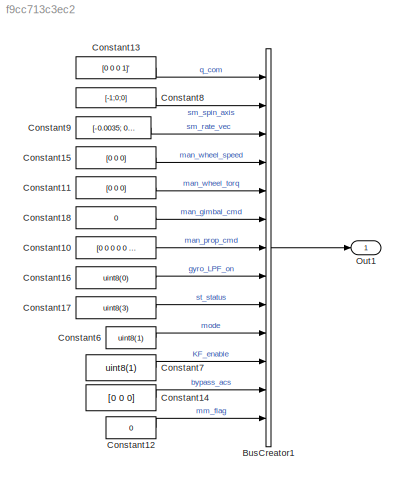
MODEL slx_f9cc713c3ec2
KIND model
CONFIG AbsTol = auto
CONFIG EnableMultiTasking = on
CONFIG FixedStep = 0.200000
CONFIG MaxStep = auto
CONFIG MinStep = auto
CONFIG PreLoadFcn = cellInfo =  {\n  { ...\n    'acs_command_msg', ...\n    '', ...\n    sprintf(''), { ...\n      {'torque_com_wheel', 3, 'double', -1, 'real', 'Sample'}; ...\n      {'thruster_on_times', 6, 'double', -1, 'real', 'Sample'}; ...\n   }\n  }\n};\nSimulink.Bus.cellToObject(cellInfo); \n\n \ncellInfo = {\n    { ...\n         'command_state_msg' , ...\n         '', ...\n         sprintf(''), {  ...\n               {  'q_com...<+1002ch>
CONFIG RelTol = 1e-3
CONFIG SampleTimeConstraint = Unconstrained
CONFIG Solver = FixedStepDiscrete
CONFIG SolverName = FixedStepDiscrete
CONFIG StartTime = 0.0
CONFIG StopTime = 19.8
WORKSPACE source: MAT-file member
WORKSPACE already_pp = 0
BLOCK [BusCreator] BusCreator1
  DisplayOption = bar
  InheritFromInputs = off
  Inputs = 13
  NonVirtualBus = on
  OutDataTypeStr = Bus: command_state_msg
  Ports = [13, 1]
BLOCK [Constant] Constant10
  OutDataTypeStr = uint16
  SampleTime = dt
  Value = [0 0 0 0 0 0 0 0]
BLOCK [Constant] Constant11
  OutDataTypeStr = single
  SampleTime = dt
  Value = [0 0 0]
BLOCK [Constant] Constant12
  OutDataTypeStr = uint8
  SampleTime = dt
  Value = 0
BLOCK [Constant] Constant13
  OutDataTypeStr = Inherit: Inherit via back propagation
  SampleTime = dt
  Value = [0 0 0 1]'
BLOCK [Constant] Constant14
  OutDataTypeStr = uint8
  SampleTime = dt
  Value = [0 0 0]
BLOCK [Constant] Constant15
  OutDataTypeStr = single
  SampleTime = dt
  Value = [0 0 0]
BLOCK [Constant] Constant16
  SampleTime = dt
  Value = uint8(0)
BLOCK [Constant] Constant17
  SampleTime = dt
  Value = uint8(3)
BLOCK [Constant] Constant18
  OutDataTypeStr = int16
  SampleTime = dt
  Value = 0
BLOCK [Constant] Constant6
  SampleTime = dt
  Value = uint8(1)
BLOCK [Constant] Constant7
  SampleTime = dt
  Value = uint8(1)
BLOCK [Constant] Constant8
  OutDataTypeStr = Inherit: Inherit via back propagation
  SampleTime = dt
  Value = [-1;0;0]
BLOCK [Constant] Constant9
  OutDataTypeStr = Inherit: Inherit via back propagation
  SampleTime = dt
  Value = [-0.0035; 0; 0]
BLOCK [Outport] Out1
  IconDisplay = Port number
  OutDataTypeStr = Bus: command_state_msg
LINE BusCreator1:1 -> Out1:1
LINE Constant10:1 -> BusCreator1:7
LINE Constant11:1 -> BusCreator1:5
LINE Constant12:1 -> BusCreator1:13
LINE Constant13:1 -> BusCreator1:1
LINE Constant14:1 -> BusCreator1:12
LINE Constant15:1 -> BusCreator1:4
LINE Constant16:1 -> BusCreator1:8
LINE Constant17:1 -> BusCreator1:9
LINE Constant18:1 -> BusCreator1:6
LINE Constant6:1 -> BusCreator1:10
LINE Constant7:1 -> BusCreator1:11
LINE Constant8:1 -> BusCreator1:2
LINE Constant9:1 -> BusCreator1:3
